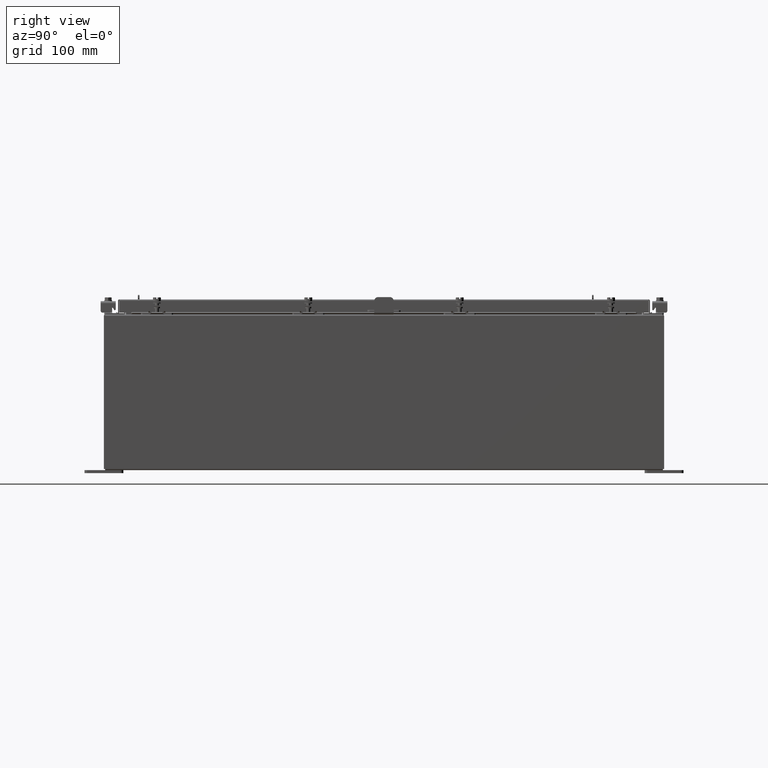
[diagram: clean part render]
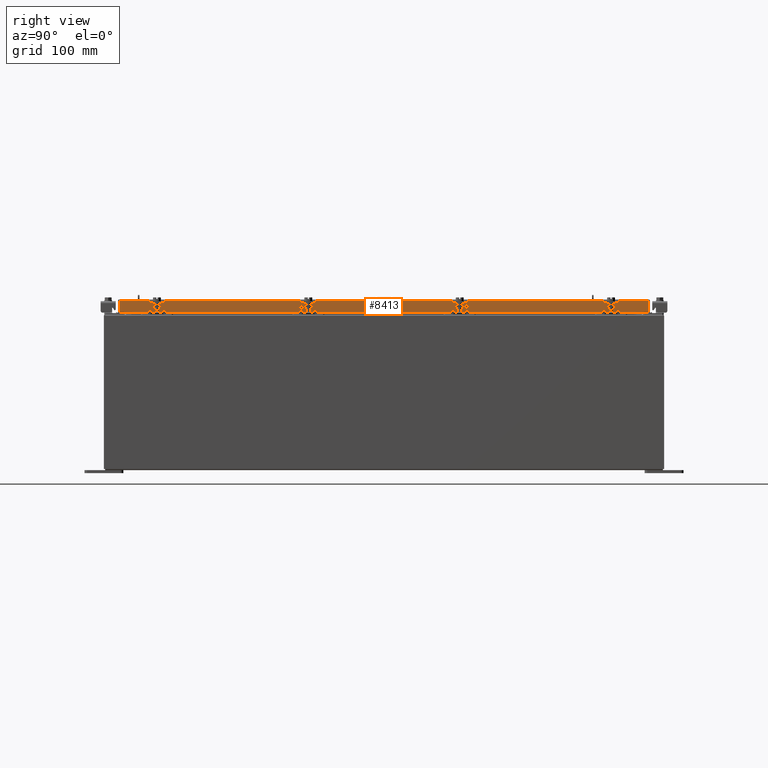
[diagram: same view with one face highlighted and labeled with its STEP entity id]
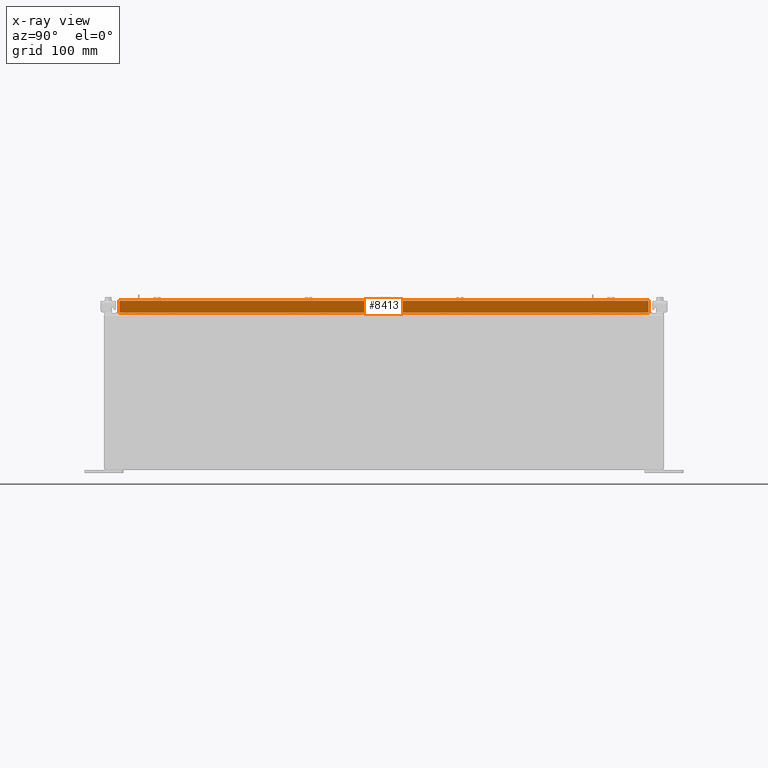
[diagram: x-ray of the same camera — body ghosted, the highlighted face saturated]
A machine part, right view. The second image highlights one B-rep face of the part: STEP entity #8413.
The next image is the same camera in x-ray: the body ghosted, the highlighted face saturated — about 0% of this face is hidden behind the body in this view.
In plain terms, the highlighted planar face has unit normal (1, 0, 0).
Its self-contained STEP definition (entity closure, byte-faithful):
#394 = VERTEX_POINT ( 'NONE', #16481 ) ;
#717 = EDGE_LOOP ( 'NONE', ( #7958, #4496, #22884, #2541, #9803, #7607 ) ) ;
#1537 = VECTOR ( 'NONE', #14846, 39.37007874015748100 ) ;
#1792 = LINE ( 'NONE', #20438, #11418 ) ;
#2123 = EDGE_CURVE ( 'NONE', #17103, #21903, #20708, .T. ) ;
#2353 = VERTEX_POINT ( 'NONE', #8488 ) ;
#2541 = ORIENTED_EDGE ( 'NONE', *, *, #16502, .F. ) ;
#2564 = CARTESIAN_POINT ( 'NONE',  ( 11.07799999999999900, -17.09400000000000100, -0.8499999999999996400 ) ) ;
#2840 = DIRECTION ( 'NONE',  ( 1.000000000000000000, 0.0000000000000000000, 2.818880942772360100E-015 ) ) ;
#4000 = CARTESIAN_POINT ( 'NONE',  ( 11.07799999999999800, -17.00515786437626900, -0.07469999999999978000 ) ) ;
#4120 = EDGE_CURVE ( 'NONE', #394, #20198, #13861, .T. ) ;
#4411 = DIRECTION ( 'NONE',  ( 0.0000000000000000000, -1.000000000000000000, 0.0000000000000000000 ) ) ;
#4496 = ORIENTED_EDGE ( 'NONE', *, *, #2123, .F. ) ;
#4693 = VERTEX_POINT ( 'NONE', #7841 ) ;
#4847 = CARTESIAN_POINT ( 'NONE',  ( 11.07799999999999800, -17.00515786437626900, -0.08770000000000224800 ) ) ;
#5824 = VECTOR ( 'NONE', #22517, 39.37007874015748100 ) ;
#7607 = ORIENTED_EDGE ( 'NONE', *, *, #4120, .T. ) ;
#7841 = CARTESIAN_POINT ( 'NONE',  ( 11.07799999999999200, 16.25515786437627200, -0.8500000000000020900 ) ) ;
#7958 = ORIENTED_EDGE ( 'NONE', *, *, #11048, .F. ) ;
#8413 = ADVANCED_FACE ( 'NONE', ( #22531 ), #10038, .T. ) ;
#8488 = CARTESIAN_POINT ( 'NONE',  ( 11.07799999999999900, 17.00515786437627600, -0.8499999999999996400 ) ) ;
#9481 = LINE ( 'NONE', #9877, #5824 ) ;
#9621 = DIRECTION ( 'NONE',  ( 0.0000000000000000000, -1.000000000000000000, 0.0000000000000000000 ) ) ;
#9790 = CARTESIAN_POINT ( 'NONE',  ( 11.07799999999999900, -17.09400000000000100, -0.8499999999999996400 ) ) ;
#9803 = ORIENTED_EDGE ( 'NONE', *, *, #10523, .T. ) ;
#9877 = CARTESIAN_POINT ( 'NONE',  ( 11.07799999999999800, 17.00515786437626900, 1.502347594351463900E-013 ) ) ;
#10038 = PLANE ( 'NONE',  #21591 ) ;
#10397 = CARTESIAN_POINT ( 'NONE',  ( 11.07799999999999200, -16.25515786437626500, -0.8500000000000020900 ) ) ;
#10523 = EDGE_CURVE ( 'NONE', #2353, #394, #9481, .T. ) ;
#11048 = EDGE_CURVE ( 'NONE', #21903, #20198, #20215, .T. ) ;
#11102 = VECTOR ( 'NONE', #15240, 39.37007874015748100 ) ;
#11418 = VECTOR ( 'NONE', #9621, 39.37007874015748100 ) ;
#11825 = EDGE_CURVE ( 'NONE', #4693, #17103, #1792, .T. ) ;
#11879 = CARTESIAN_POINT ( 'NONE',  ( 11.07799999999999800, 0.0000000000000000000, 3.148837674004378400E-014 ) ) ;
#12654 = VECTOR ( 'NONE', #4411, 39.37007874015748100 ) ;
#13861 = LINE ( 'NONE', #21618, #23383 ) ;
#14846 = DIRECTION ( 'NONE',  ( -2.818880942772360500E-015, -6.982962677686269100E-015, 1.000000000000000000 ) ) ;
#15240 = DIRECTION ( 'NONE',  ( 0.0000000000000000000, -1.000000000000000000, 0.0000000000000000000 ) ) ;
#15517 = DIRECTION ( 'NONE',  ( 2.818880942772360100E-015, 0.0000000000000000000, -1.000000000000000000 ) ) ;
#16203 = DIRECTION ( 'NONE',  ( 1.801978295984813200E-031, -1.000000000000000000, -6.392530697705073700E-017 ) ) ;
#16481 = CARTESIAN_POINT ( 'NONE',  ( 11.07799999999999800, 17.00515786437626500, -0.08770000000000115200 ) ) ;
#16502 = EDGE_CURVE ( 'NONE', #2353, #4693, #17440, .T. ) ;
#17103 = VERTEX_POINT ( 'NONE', #10397 ) ;
#17440 = LINE ( 'NONE', #9790, #12654 ) ;
#19077 = CARTESIAN_POINT ( 'NONE',  ( 11.07799999999999900, -17.00515786437626500, -0.8499999999999996400 ) ) ;
#20198 = VERTEX_POINT ( 'NONE', #4847 ) ;
#20215 = LINE ( 'NONE', #4000, #1537 ) ;
#20438 = CARTESIAN_POINT ( 'NONE',  ( 11.07799999999999200, 16.25515786437627200, -0.8500000000000020900 ) ) ;
#20708 = LINE ( 'NONE', #2564, #11102 ) ;
#21591 = AXIS2_PLACEMENT_3D ( 'NONE', #11879, #2840, #15517 ) ;
#21618 = CARTESIAN_POINT ( 'NONE',  ( 11.07799999999999800, 5.606249421889436000E-018, -0.08770000000000115200 ) ) ;
#21903 = VERTEX_POINT ( 'NONE', #19077 ) ;
#22517 = DIRECTION ( 'NONE',  ( -2.818880942772360500E-015, -6.982962677686269100E-015, 1.000000000000000000 ) ) ;
#22531 = FACE_OUTER_BOUND ( 'NONE', #717, .T. ) ;
#22884 = ORIENTED_EDGE ( 'NONE', *, *, #11825, .F. ) ;
#23383 = VECTOR ( 'NONE', #16203, 39.37007874015748100 ) ;